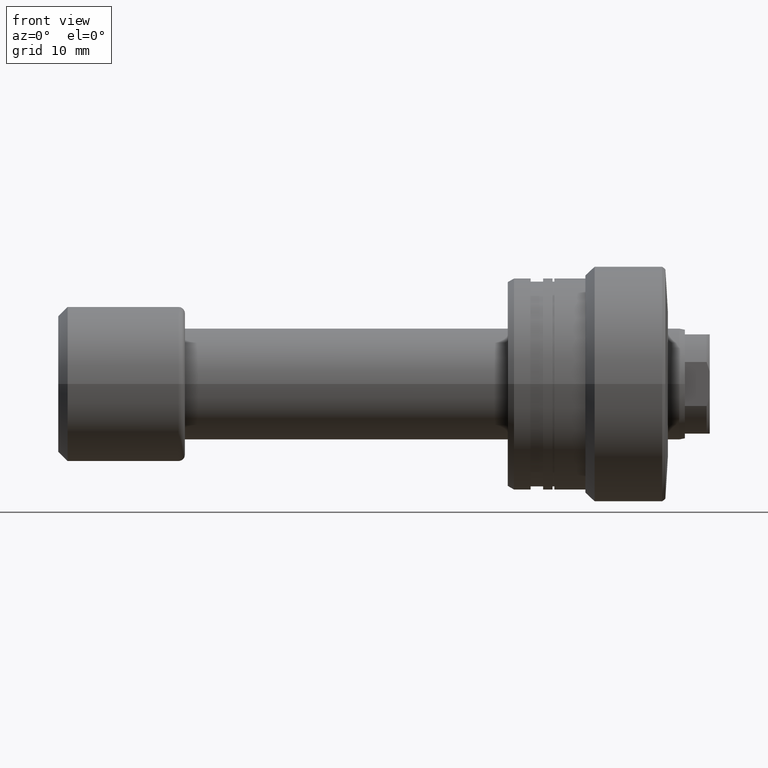
[diagram: clean part render]
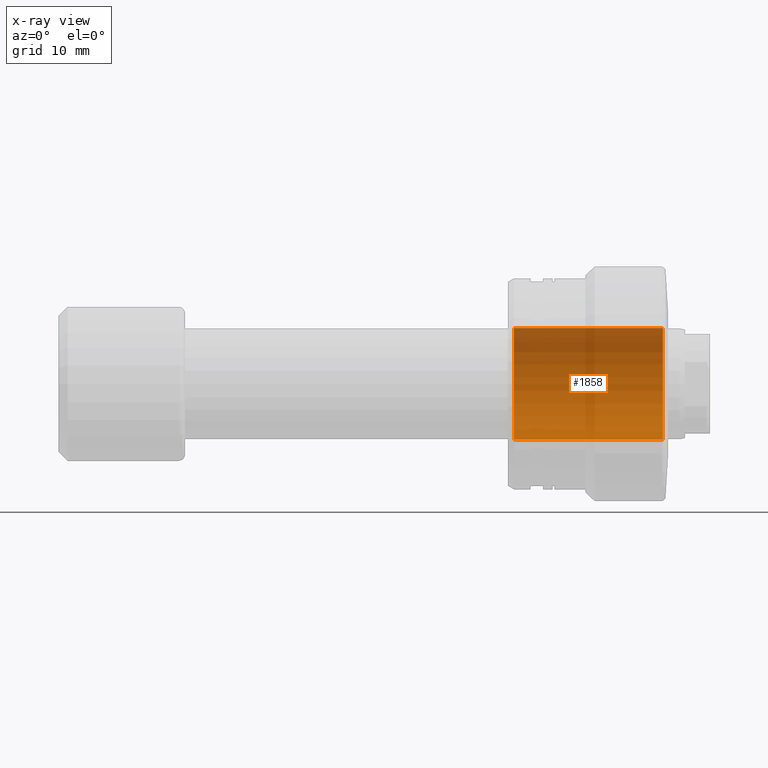
[diagram: x-ray — body ghosted, one internal face saturated and labeled with its STEP entity id]
A machine part, front view, then the same camera in x-ray: the body is ghosted and one INTERNAL B-rep face — a face not visible from any outside direction — is saturated and labeled: STEP entity #1858.
In plain terms, the highlighted cylindrical surface (partial cylindrical patch) has radius 9 mm, axis along (1, 0, 0).
Its self-contained STEP definition (entity closure, byte-faithful):
#2 = FACE_OUTER_BOUND ( 'NONE', #903, .T. ) ;
#261 = CARTESIAN_POINT ( 'NONE',  ( -51.95584412271570329, 0.000000000000000000, -9.000000000000000000 ) ) ;
#307 = ORIENTED_EDGE ( 'NONE', *, *, #648, .T. ) ;
#434 = DIRECTION ( 'NONE',  ( 0.000000000000000000, 0.000000000000000000, -1.000000000000000000 ) ) ;
#458 = EDGE_CURVE ( 'NONE', #535, #467, #957, .T. ) ;
#467 = VERTEX_POINT ( 'NONE', #1524 ) ;
#507 = CIRCLE ( 'NONE', #1273, 9.000000000000000000 ) ;
#535 = VERTEX_POINT ( 'NONE', #2047 ) ;
#581 = CARTESIAN_POINT ( 'NONE',  ( -51.95584412271570329, 0.000000000000000000, 0.000000000000000000 ) ) ;
#648 = EDGE_CURVE ( 'NONE', #2031, #535, #997, .T. ) ;
#658 = AXIS2_PLACEMENT_3D ( 'NONE', #581, #1139, #434 ) ;
#668 = DIRECTION ( 'NONE',  ( 0.000000000000000000, 0.000000000000000000, 1.000000000000000000 ) ) ;
#788 = CYLINDRICAL_SURFACE ( 'NONE', #658, 9.000000000000000000 ) ;
#886 = AXIS2_PLACEMENT_3D ( 'NONE', #2356, #1607, #668 ) ;
#903 = EDGE_LOOP ( 'NONE', ( #1877, #307, #1411, #1550 ) ) ;
#957 = LINE ( 'NONE', #261, #1867 ) ;
#997 = CIRCLE ( 'NONE', #886, 9.000000000000000000 ) ;
#1139 = DIRECTION ( 'NONE',  ( 1.000000000000000000, -0.000000000000000000, -0.000000000000000000 ) ) ;
#1183 = EDGE_CURVE ( 'NONE', #2031, #1616, #2061, .T. ) ;
#1273 = AXIS2_PLACEMENT_3D ( 'NONE', #1439, #2193, #2390 ) ;
#1390 = CARTESIAN_POINT ( 'NONE',  ( -25.50000000000003197, 1.102182119232617517E-15, 9.000000000000000000 ) ) ;
#1411 = ORIENTED_EDGE ( 'NONE', *, *, #458, .T. ) ;
#1439 = CARTESIAN_POINT ( 'NONE',  ( -1.500000000000000000, 0.000000000000000000, 0.000000000000000000 ) ) ;
#1467 = DIRECTION ( 'NONE',  ( 1.000000000000000000, -0.000000000000000000, -0.000000000000000000 ) ) ;
#1524 = CARTESIAN_POINT ( 'NONE',  ( -1.500000000000000000, 0.000000000000000000, -9.000000000000000000 ) ) ;
#1550 = ORIENTED_EDGE ( 'NONE', *, *, #2219, .T. ) ;
#1607 = DIRECTION ( 'NONE',  ( -1.000000000000000000, -0.000000000000000000, -0.000000000000000000 ) ) ;
#1616 = VERTEX_POINT ( 'NONE', #1750 ) ;
#1647 = VECTOR ( 'NONE', #1467, 1000.000000000000000 ) ;
#1741 = DIRECTION ( 'NONE',  ( 1.000000000000000000, -0.000000000000000000, -0.000000000000000000 ) ) ;
#1750 = CARTESIAN_POINT ( 'NONE',  ( -1.500000000000000000, 1.102182119232617517E-15, 9.000000000000000000 ) ) ;
#1858 = ADVANCED_FACE ( 'NONE', ( #2 ), #788, .F. ) ;
#1867 = VECTOR ( 'NONE', #1741, 1000.000000000000000 ) ;
#1877 = ORIENTED_EDGE ( 'NONE', *, *, #1183, .F. ) ;
#2031 = VERTEX_POINT ( 'NONE', #1390 ) ;
#2047 = CARTESIAN_POINT ( 'NONE',  ( -25.50000000000003197, 0.000000000000000000, -9.000000000000000000 ) ) ;
#2061 = LINE ( 'NONE', #2394, #1647 ) ;
#2193 = DIRECTION ( 'NONE',  ( 1.000000000000000000, 0.000000000000000000, 0.000000000000000000 ) ) ;
#2219 = EDGE_CURVE ( 'NONE', #467, #1616, #507, .T. ) ;
#2356 = CARTESIAN_POINT ( 'NONE',  ( -25.50000000000003197, 0.000000000000000000, 0.000000000000000000 ) ) ;
#2390 = DIRECTION ( 'NONE',  ( 0.000000000000000000, 0.000000000000000000, -1.000000000000000000 ) ) ;
#2394 = CARTESIAN_POINT ( 'NONE',  ( -51.95584412271570329, 1.102182119232617517E-15, 9.000000000000000000 ) ) ;